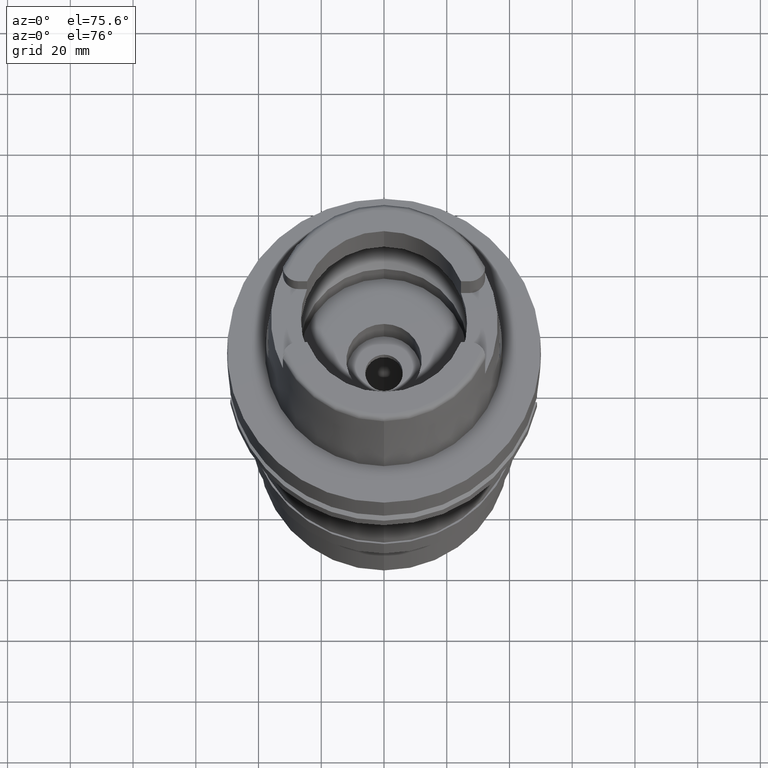
[diagram: clean part render]
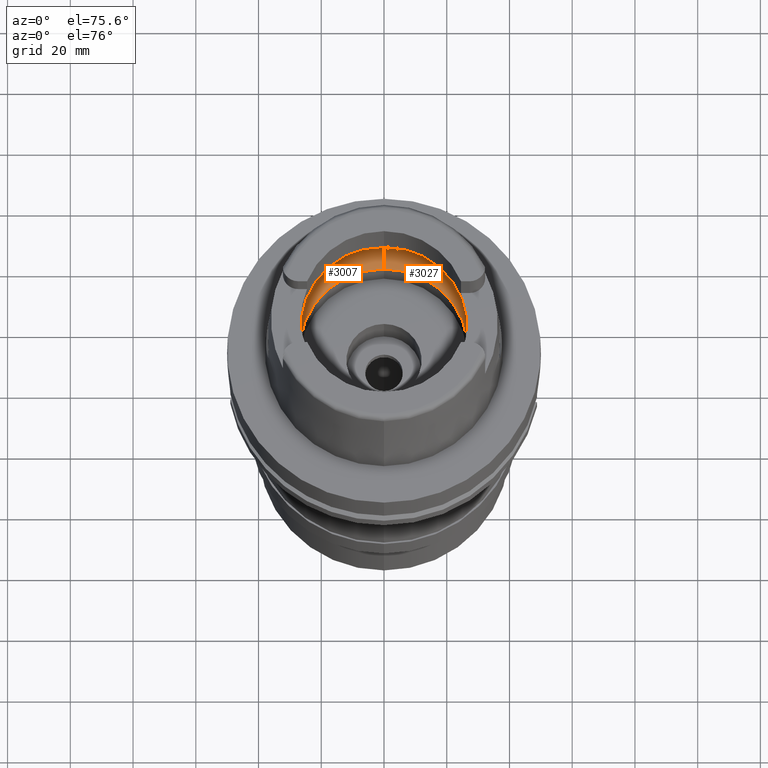
[diagram: same view with one multi-face feature highlighted, each face labeled with its STEP entity id]
A machine part, auxiliary view. The highlighted faces form ONE feature: a constant-radius fillet chain: 2 tangent blend faces with common blend radius 12 mm. The faces share edges in the B-rep.
Their STEP definitions:
[1] entity #3007 (Torus):
#498=CARTESIAN_POINT('',(-3.140918884336E1,-2.390158196044E0,9.496624327026E0));
#542=CARTESIAN_POINT('',(-3.148971910754E1,0.E0,9.E0));
#543=CARTESIAN_POINT('',(-3.148971910754E1,-2.735561604717E-1,9.E0));
#544=CARTESIAN_POINT('',(-3.148418893354E1,-8.204047880593E-1,
9.037462411515E0));
#545=CARTESIAN_POINT('',(-3.145848775708E1,-1.624946043736E0,9.204833498216E0));
#546=CARTESIAN_POINT('',(-3.142821196222E1,-2.140174436096E0,9.388054465868E0));
#547=CARTESIAN_POINT('',(-3.140918884336E1,-2.390158196044E0,9.496624327026E0));
#570=CARTESIAN_POINT('',(-3.140918884336E1,2.390158196044E0,9.496624327026E0));
#571=CARTESIAN_POINT('',(-3.142821156635E1,2.140179638288E0,9.388056725219E0));
#572=CARTESIAN_POINT('',(-3.145848719827E1,1.624958773048E0,9.204837131052E0));
#573=CARTESIAN_POINT('',(-3.148418883199E1,8.204123308092E-1,9.037463100293E0));
#574=CARTESIAN_POINT('',(-3.148971910754E1,2.735593592173E-1,9.E0));
#575=CARTESIAN_POINT('',(-3.148971910754E1,0.E0,9.E0));
#606=CARTESIAN_POINT('',(0.E0,0.E0,9.496624327026E0));
#607=DIRECTION('',(0.E0,0.E0,-1.E0));
#608=DIRECTION('',(-9.971171061384E-1,7.587803796965E-2,0.E0));
#609=AXIS2_PLACEMENT_3D('',#606,#607,#608);
#614=CARTESIAN_POINT('',(0.E0,0.E0,4.993178413029E-2));
#615=DIRECTION('',(0.E0,0.E0,1.E0));
#616=DIRECTION('',(0.E0,1.E0,0.E0));
#617=AXIS2_PLACEMENT_3D('',#614,#615,#616);
#622=CARTESIAN_POINT('',(0.E0,-1.95E1,9.496624327026E0));
#623=DIRECTION('',(-1.E0,0.E0,0.E0));
#624=DIRECTION('',(0.E0,-6.166666666667E-1,-7.872243785746E-1));
#625=AXIS2_PLACEMENT_3D('',#622,#623,#624);
#630=CARTESIAN_POINT('',(0.E0,0.E0,9.496624327026E0));
#631=DIRECTION('',(0.E0,0.E0,-1.E0));
#632=DIRECTION('',(0.E0,-1.E0,0.E0));
#633=AXIS2_PLACEMENT_3D('',#630,#631,#632);
#654=CARTESIAN_POINT('',(0.E0,1.95E1,9.496624327026E0));
#655=DIRECTION('',(1.E0,0.E0,0.E0));
#656=DIRECTION('',(0.E0,6.166666666667E-1,-7.872243785746E-1));
#657=AXIS2_PLACEMENT_3D('',#654,#655,#656);
#2356=VERTEX_POINT('',#498);
#2358=CARTESIAN_POINT('',(0.E0,-3.15E1,9.496624327026E0));
#2359=VERTEX_POINT('',#2358);
#2360=CARTESIAN_POINT('',(0.E0,3.15E1,9.496624327026E0));
#2361=VERTEX_POINT('',#2360);
#2362=CARTESIAN_POINT('',(-3.140918884336E1,2.390158196044E0,9.496624327026E0));
#2363=VERTEX_POINT('',#2362);
#2364=CARTESIAN_POINT('',(-3.148971910754E1,0.E0,9.E0));
#2365=VERTEX_POINT('',#2364);
#2370=CARTESIAN_POINT('',(0.E0,2.69E1,4.993178413029E-2));
#2371=VERTEX_POINT('',#2370);
#2372=CARTESIAN_POINT('',(0.E0,-2.69E1,4.993178413029E-2));
#2373=VERTEX_POINT('',#2372);
#2990=CARTESIAN_POINT('',(0.E0,0.E0,9.496624327026E0));
#2991=DIRECTION('',(0.E0,0.E0,1.E0));
#2992=DIRECTION('',(0.E0,1.E0,0.E0));
#2993=AXIS2_PLACEMENT_3D('',#2990,#2991,#2992);
#2994=TOROIDAL_SURFACE('',#2993,1.95E1,1.2E1);
#2995=ORIENTED_EDGE('',*,*,#2971,.F.);
#2996=ORIENTED_EDGE('',*,*,#2982,.F.);
#2997=ORIENTED_EDGE('',*,*,#2953,.T.);
#2999=ORIENTED_EDGE('',*,*,#2998,.F.);
#3001=ORIENTED_EDGE('',*,*,#3000,.T.);
#3003=ORIENTED_EDGE('',*,*,#3002,.T.);
#3004=ORIENTED_EDGE('',*,*,#2946,.T.);
#3005=EDGE_LOOP('',(#2995,#2996,#2997,#2999,#3001,#3003,#3004));
#3006=FACE_OUTER_BOUND('',#3005,.F.);
#548=B_SPLINE_CURVE_WITH_KNOTS('',3,(#542,#543,#544,#545,#546,#547),
.UNSPECIFIED.,.F.,.F.,(4,1,1,4),(0.E0,3.333333333333E-1,6.666666666667E-1,1.E0),
.UNSPECIFIED.);
#576=B_SPLINE_CURVE_WITH_KNOTS('',3,(#570,#571,#572,#573,#574,#575),
.UNSPECIFIED.,.F.,.F.,(4,1,1,4),(0.E0,3.333333333333E-1,6.666666666667E-1,1.E0),
.UNSPECIFIED.);
#610=CIRCLE('',#609,3.15E1);
#618=CIRCLE('',#617,2.69E1);
#626=CIRCLE('',#625,1.2E1);
#634=CIRCLE('',#633,3.15E1);
#658=CIRCLE('',#657,1.2E1);
#2946=EDGE_CURVE('',#2359,#2356,#634,.T.);
#2953=EDGE_CURVE('',#2363,#2361,#610,.T.);
#2971=EDGE_CURVE('',#2365,#2356,#548,.T.);
#2982=EDGE_CURVE('',#2363,#2365,#576,.T.);
#2998=EDGE_CURVE('',#2371,#2361,#658,.T.);
#3000=EDGE_CURVE('',#2371,#2373,#618,.T.);
#3002=EDGE_CURVE('',#2373,#2359,#626,.T.);
#3007=ADVANCED_FACE('',(#3006),#2994,.F.);
[2] entity #3027 (Torus):
#622=CARTESIAN_POINT('',(0.E0,-1.95E1,9.496624327026E0));
#623=DIRECTION('',(-1.E0,0.E0,0.E0));
#624=DIRECTION('',(0.E0,-6.166666666667E-1,-7.872243785746E-1));
#625=AXIS2_PLACEMENT_3D('',#622,#623,#624);
#638=CARTESIAN_POINT('',(0.E0,0.E0,9.496624327026E0));
#639=DIRECTION('',(0.E0,0.E0,-1.E0));
#640=DIRECTION('',(9.971171061384E-1,-7.587803796965E-2,0.E0));
#641=AXIS2_PLACEMENT_3D('',#638,#639,#640);
#646=CARTESIAN_POINT('',(0.E0,0.E0,4.993178413029E-2));
#647=DIRECTION('',(0.E0,0.E0,1.E0));
#648=DIRECTION('',(0.E0,-1.E0,0.E0));
#649=AXIS2_PLACEMENT_3D('',#646,#647,#648);
#654=CARTESIAN_POINT('',(0.E0,1.95E1,9.496624327026E0));
#655=DIRECTION('',(1.E0,0.E0,0.E0));
#656=DIRECTION('',(0.E0,6.166666666667E-1,-7.872243785746E-1));
#657=AXIS2_PLACEMENT_3D('',#654,#655,#656);
#662=CARTESIAN_POINT('',(0.E0,0.E0,9.496624327026E0));
#663=DIRECTION('',(0.E0,0.E0,-1.E0));
#664=DIRECTION('',(0.E0,1.E0,0.E0));
#665=AXIS2_PLACEMENT_3D('',#662,#663,#664);
#683=CARTESIAN_POINT('',(3.140918884336E1,-2.390158196044E0,9.496624327026E0));
#688=CARTESIAN_POINT('',(3.140918884336E1,-2.390158196044E0,9.496624327026E0));
#689=CARTESIAN_POINT('',(3.142821196846E1,-2.140174354078E0,9.388054430246E0));
#690=CARTESIAN_POINT('',(3.145848776669E1,-1.624945842832E0,9.204833437630E0));
#691=CARTESIAN_POINT('',(3.148418893715E1,-8.204045798769E-1,9.037462387011E0));
#692=CARTESIAN_POINT('',(3.148971910754E1,-2.735560710059E-1,9.E0));
#693=CARTESIAN_POINT('',(3.148971910754E1,0.E0,9.E0));
#731=CARTESIAN_POINT('',(3.140918884336E1,2.390158196044E0,9.496624327026E0));
#775=CARTESIAN_POINT('',(3.148971910754E1,0.E0,9.E0));
#776=CARTESIAN_POINT('',(3.148971910754E1,2.735594525988E-1,9.E0));
#777=CARTESIAN_POINT('',(3.148418882822E1,8.204125481032E-1,9.037463125870E0));
#778=CARTESIAN_POINT('',(3.145848718823E1,1.624958982739E0,9.204837194289E0));
#779=CARTESIAN_POINT('',(3.142821155983E1,2.140179723894E0,9.388056762399E0));
#780=CARTESIAN_POINT('',(3.140918884336E1,2.390158196044E0,9.496624327026E0));
#2358=CARTESIAN_POINT('',(0.E0,-3.15E1,9.496624327026E0));
#2359=VERTEX_POINT('',#2358);
#2360=CARTESIAN_POINT('',(0.E0,3.15E1,9.496624327026E0));
#2361=VERTEX_POINT('',#2360);
#2367=VERTEX_POINT('',#683);
#2368=VERTEX_POINT('',#693);
#2369=VERTEX_POINT('',#731);
#2370=CARTESIAN_POINT('',(0.E0,2.69E1,4.993178413029E-2));
#2371=VERTEX_POINT('',#2370);
#2372=CARTESIAN_POINT('',(0.E0,-2.69E1,4.993178413029E-2));
#2373=VERTEX_POINT('',#2372);
#3008=CARTESIAN_POINT('',(0.E0,0.E0,9.496624327026E0));
#3009=DIRECTION('',(0.E0,0.E0,1.E0));
#3010=DIRECTION('',(0.E0,1.E0,0.E0));
#3011=AXIS2_PLACEMENT_3D('',#3008,#3009,#3010);
#3012=TOROIDAL_SURFACE('',#3011,1.95E1,1.2E1);
#3014=ORIENTED_EDGE('',*,*,#3013,.F.);
#3016=ORIENTED_EDGE('',*,*,#3015,.T.);
#3017=ORIENTED_EDGE('',*,*,#3002,.F.);
#3019=ORIENTED_EDGE('',*,*,#3018,.T.);
#3020=ORIENTED_EDGE('',*,*,#2998,.T.);
#3022=ORIENTED_EDGE('',*,*,#3021,.T.);
#3024=ORIENTED_EDGE('',*,*,#3023,.F.);
#3025=EDGE_LOOP('',(#3014,#3016,#3017,#3019,#3020,#3022,#3024));
#3026=FACE_OUTER_BOUND('',#3025,.F.);
#626=CIRCLE('',#625,1.2E1);
#642=CIRCLE('',#641,3.15E1);
#650=CIRCLE('',#649,2.69E1);
#658=CIRCLE('',#657,1.2E1);
#666=CIRCLE('',#665,3.15E1);
#694=B_SPLINE_CURVE_WITH_KNOTS('',3,(#688,#689,#690,#691,#692,#693),
.UNSPECIFIED.,.F.,.F.,(4,1,1,4),(0.E0,3.333333333333E-1,6.666666666667E-1,1.E0),
.UNSPECIFIED.);
#781=B_SPLINE_CURVE_WITH_KNOTS('',3,(#775,#776,#777,#778,#779,#780),
.UNSPECIFIED.,.F.,.F.,(4,1,1,4),(0.E0,3.333333333333E-1,6.666666666667E-1,1.E0),
.UNSPECIFIED.);
#2998=EDGE_CURVE('',#2371,#2361,#658,.T.);
#3002=EDGE_CURVE('',#2373,#2359,#626,.T.);
#3013=EDGE_CURVE('',#2367,#2368,#694,.T.);
#3015=EDGE_CURVE('',#2367,#2359,#642,.T.);
#3018=EDGE_CURVE('',#2373,#2371,#650,.T.);
#3021=EDGE_CURVE('',#2361,#2369,#666,.T.);
#3023=EDGE_CURVE('',#2368,#2369,#781,.T.);
#3027=ADVANCED_FACE('',(#3026),#3012,.F.);